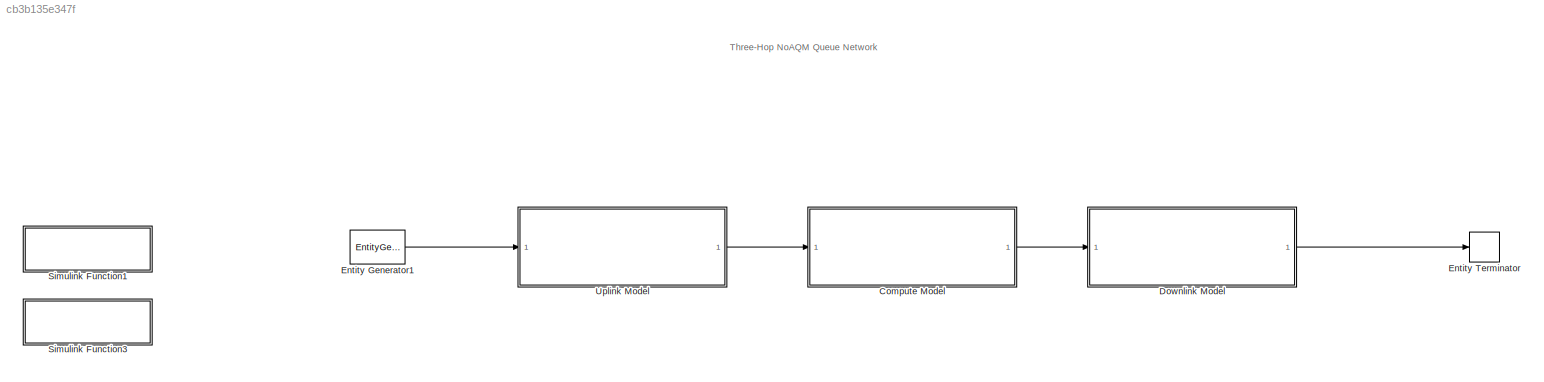
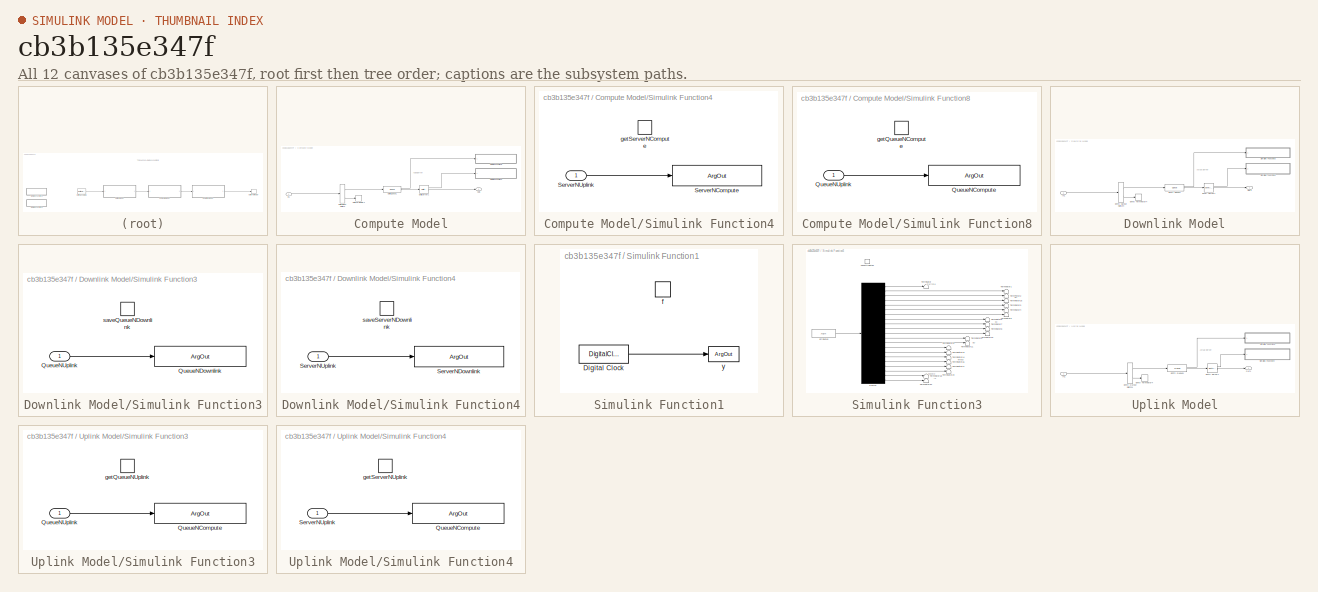
[diagram: thumbnail index - all 12 canvases of the model, root first then tree order]
MODEL slx_cb3b135e347f
KIND model
CONFIG AbsTol = auto
CONFIG EnableMultiTasking = on
CONFIG FixedStep = auto
CONFIG MaxStep = auto
CONFIG MinStep = auto
CONFIG RelTol = 1e-3
CONFIG SampleTimeConstraint = Unconstrained
CONFIG SolverName = VariableStepAuto
CONFIG StartTime = 0.0
CONFIG StopTime = 100
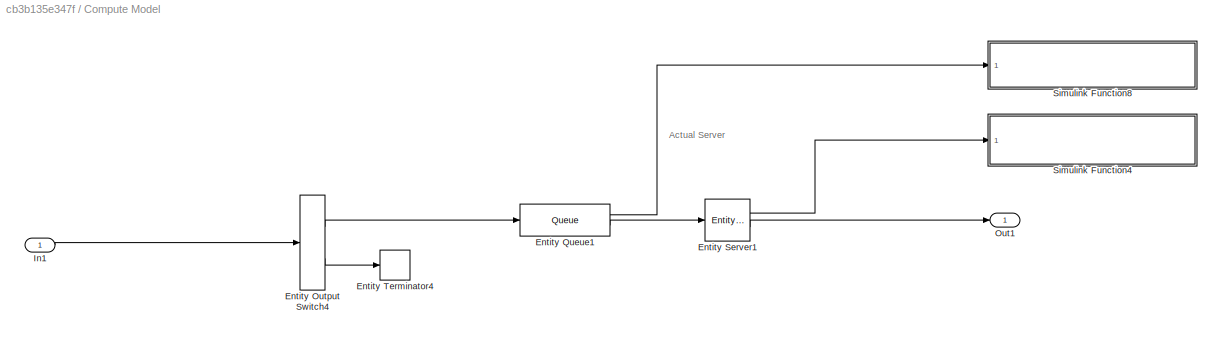
BLOCK [SubSystem] Compute Model
  Ports = [1, 1]
  RequestExecContextInheritance = off
BLOCK [EntityOutputSwitch] Compute Model/Entity Output Switch4
  InputPortMap = u1
  InputPortMessageModes = m
  OutputPortMap = o0,o1
  OutputPortMessageModes = m,m
  Ports = [1, 2]
  SwitchAttributeName = drop_at_source
BLOCK [Queue] Compute Model/Entity Queue1
  Capacity = sim_vars(10)
  InputPortMap = u0
  InputPortMessageModes = m
  NumberEntitiesInBlock = on
  OutputPortMap = o1,o5
  OutputPortMessageModes = n,m
  Ports = [1, 2]
BLOCK [EntityServer] Compute Model/Entity Server1
  Capacity = 1
  EntryAction = % record packet's queue timestamp\nentity.queuetime_compute = getCurrentTime();
  InputPortMap = u2
  InputPortMessageModes = m
  NumberEntitiesInBlock = on
  OutputPortMap = o1,o9
  OutputPortMessageModes = n,m
  Ports = [1, 2]
  ServiceCompleteAction = % record service timestamp\nentity.servicetime_compute = getCurrentTime();\n\n% record network state in front\nentity.queuen_downlink_bd = getQueueNDownlink();\nentity.servern_downlink_bd = getServerNDownlink();
  ServiceTimeAction = dt = getServiceTimeCompute(sim_vars(5),sim_vars(6),sim_vars(12));
  ServiceTimeSource = MATLAB action
BLOCK [EntityTerminator] Compute Model/Entity Terminator4
  EntryAction = saveAttributes([entity.starttime;               ...\n                entity.queuen_uplink_bu;        ...\n                entity.servern_uplink_bu;       ...\n                entity.queuen_compute_bu;       ...\n                entity.servern_compute_bu;      ...\n                entity.queuen_downlink_bu;      ...\n                entity.servern_downlink_bu;     ...\n                entity.queuen_comput...<+671ch>  <repeated x3 — deduplicated; at blocks: Entity Terminator4>
  InputPortMap = u0
  InputPortMessageModes = m
  Ports = [1]
BLOCK [Inport] Compute Model/In1
BLOCK [Outport] Compute Model/Out1
BLOCK [SubSystem] Compute Model/Simulink Function4
  Ports = [1, 0, 0, 1]
  RequestExecContextInheritance = off
  TreatAsAtomicUnit = on
BLOCK [ArgOut] Compute Model/Simulink Function4/ServerNCompute
  ArgumentName = ServerNCompute
  DisableCoverage = on
BLOCK [Inport] Compute Model/Simulink Function4/ServerNUplink
BLOCK [TriggerPort] Compute Model/Simulink Function4/getServerNCompute
  FunctionName = getServerNCompute
  IsSimulinkFunction = on
  Ports = []
  StatesWhenEnabling = held
  TriggerType = function-call
  VariantControl = (inherit)
BLOCK [SubSystem] Compute Model/Simulink Function8
  Ports = [1, 0, 0, 1]
  RequestExecContextInheritance = off
  TreatAsAtomicUnit = on
BLOCK [ArgOut] Compute Model/Simulink Function8/QueueNCompute
  ArgumentName = QueueNCompute
  DisableCoverage = on
BLOCK [Inport] Compute Model/Simulink Function8/QueueNUplink
BLOCK [TriggerPort] Compute Model/Simulink Function8/getQueueNCompute
  FunctionName = getQueueNCompute
  IsSimulinkFunction = on
  Ports = []
  StatesWhenEnabling = held
  TriggerType = function-call
  VariantControl = (inherit)
BLOCK [SubSystem] Downlink Model
  Ports = [1, 1]
  RequestExecContextInheritance = off
BLOCK [EntityOutputSwitch] Downlink Model/Entity Output Switch4
  InputPortMap = u1
  InputPortMessageModes = m
  OutputPortMap = o0,o1
  OutputPortMessageModes = m,m
  Ports = [1, 2]
  SwitchAttributeName = drop_at_source
BLOCK [Queue] Downlink Model/Entity Queue1
  Capacity = sim_vars(11)
  InputPortMap = u0
  InputPortMessageModes = m
  NumberEntitiesInBlock = on
  OutputPortMap = o1,o5
  OutputPortMessageModes = n,m
  Ports = [1, 2]
BLOCK [EntityServer] Downlink Model/Entity Server1
  Capacity = 1
  EntryAction = % record packet's queue timestamp\nentity.queuetime_downlink = getCurrentTime();
  InputPortMap = u2
  InputPortMessageModes = m
  NumberEntitiesInBlock = on
  OutputPortMap = o1,o9
  OutputPortMessageModes = n,m
  Ports = [1, 2]
  ServiceCompleteAction = % record service timestamp\nentity.servicetime_downlink = getCurrentTime();
  ServiceTimeAction = dt = getServiceTimeDownlink(sim_vars(7),sim_vars(8),sim_vars(12));
  ServiceTimeSource = MATLAB action
BLOCK [EntityTerminator] Downlink Model/Entity Terminator4
  InputPortMap = u0
  InputPortMessageModes = m
  Ports = [1]
BLOCK [Inport] Downlink Model/In1
BLOCK [Outport] Downlink Model/Out1
BLOCK [SubSystem] Downlink Model/Simulink Function3
  Ports = [1, 0, 0, 1]
  RequestExecContextInheritance = off
  TreatAsAtomicUnit = on
BLOCK [ArgOut] Downlink Model/Simulink Function3/QueueNDownlink
  ArgumentName = QueueNDownlink
  DisableCoverage = on
BLOCK [Inport] Downlink Model/Simulink Function3/QueueNUplink
BLOCK [TriggerPort] Downlink Model/Simulink Function3/saveQueueNDownlink
  FunctionName = getQueueNDownlink
  IsSimulinkFunction = on
  Ports = []
  StatesWhenEnabling = held
  TriggerType = function-call
  VariantControl = (inherit)
BLOCK [SubSystem] Downlink Model/Simulink Function4
  Ports = [1, 0, 0, 1]
  RequestExecContextInheritance = off
  TreatAsAtomicUnit = on
BLOCK [ArgOut] Downlink Model/Simulink Function4/ServerNDownlink
  ArgumentName = ServerNDownlink
  DisableCoverage = on
BLOCK [Inport] Downlink Model/Simulink Function4/ServerNUplink
BLOCK [TriggerPort] Downlink Model/Simulink Function4/saveServerNDownlink
  FunctionName = getServerNDownlink
  IsSimulinkFunction = on
  Ports = []
  StatesWhenEnabling = held
  TriggerType = function-call
  VariantControl = (inherit)
BLOCK [EntityGenerator] Entity Generator1
  AttributeInitialValue = inf|-1|-1|-1|-1|-1|-1|-1|-1|-1|-1|-1|-1|inf|inf|inf|inf|inf|inf|inf
  AttributeName = starttime|queuen_uplink_bu|servern_uplink_bu|queuen_compute_bu|servern_compute_bu|queuen_downlink_bu|servern_downlink_bu|queuen_compute_bc|servern_compute_bc|queuen_downlink_bc|servern_downlink_bc|queuen_downlink_bd|servern_downlink_bd|queuetime_uplink|servicetime_uplink|queuetime_compute|servicetime_compute|queuetime_downlink|servicetime_downlink|endtime
  EntityType = Structured
  EntityTypeName = Entity
  GenerateAction = entity.starttime = getCurrentTime();\n\nentity.queuen_uplink_bu = getQueueNUplink();\nentity.servern_uplink_bu = getServerNUplink();\n\nentity.queuen_compute_bu = getQueueNCompute();\nentity.servern_compute_bu = getServerNCompute();\n\nentity.queuen_downlink_bu = getQueueNDownlink();\nentity.servern_downlink_bu = getServerNDownlink();\n\n%[nd,ne,np] = saveCrossNUplink();\n%entity.crossn_uplink = nd-ne-np;
  IntergenerationTimeAction = dt = getArrivalTime(sim_vars(1),sim_vars(2),sim_vars(12));
  OutputPortMap = o3
  OutputPortMessageModes = m
  Ports = [0, 1]
  TimeSource = MATLAB action
BLOCK [EntityTerminator] Entity Terminator
  EntryAction = entity.endtime = getCurrentTime();\n\nsaveAttributes([entity.starttime;               ...\n                entity.queuen_uplink_bu;        ...\n                entity.servern_uplink_bu;       ...\n                entity.queuen_compute_bu;       ...\n                entity.servern_compute_bu;      ...\n                entity.queuen_downlink_bu;      ...\n                entity.servern_downlink_bu;     ...\n...<+707ch>
  InputPortMap = u0
  InputPortMessageModes = m
  Ports = [1]
BLOCK [SubSystem] Simulink Function1
  Ports = [0, 0, 0, 1]
  RequestExecContextInheritance = off
  TreatAsAtomicUnit = on
BLOCK [DigitalClock] Simulink Function1/Digital Clock
  SampleTime = -1
BLOCK [TriggerPort] Simulink Function1/f
  FunctionName = getCurrentTime
  IsSimulinkFunction = on
  Ports = []
  StatesWhenEnabling = held
  TriggerType = function-call
  VariantControl = (inherit)
BLOCK [ArgOut] Simulink Function1/y
  ArgumentName = y
  DisableCoverage = on
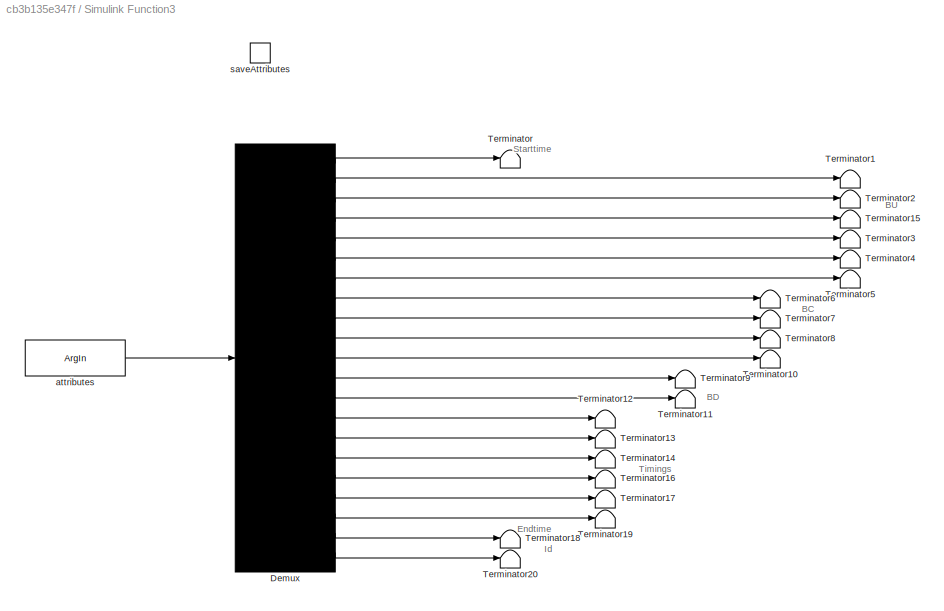
BLOCK [SubSystem] Simulink Function3
  Ports = [0, 0, 0, 1]
  RequestExecContextInheritance = off
  TreatAsAtomicUnit = on
BLOCK [Demux] Simulink Function3/Demux
  DisplayOption = none
  Outputs = 21
  Ports = [1, 21]
BLOCK [Terminator] Simulink Function3/Terminator
BLOCK [Terminator] Simulink Function3/Terminator1
BLOCK [Terminator] Simulink Function3/Terminator10
BLOCK [Terminator] Simulink Function3/Terminator11
BLOCK [Terminator] Simulink Function3/Terminator12
BLOCK [Terminator] Simulink Function3/Terminator13
BLOCK [Terminator] Simulink Function3/Terminator14
BLOCK [Terminator] Simulink Function3/Terminator15
BLOCK [Terminator] Simulink Function3/Terminator16
BLOCK [Terminator] Simulink Function3/Terminator17
BLOCK [Terminator] Simulink Function3/Terminator18
BLOCK [Terminator] Simulink Function3/Terminator19
BLOCK [Terminator] Simulink Function3/Terminator2
BLOCK [Terminator] Simulink Function3/Terminator20
BLOCK [Terminator] Simulink Function3/Terminator3
BLOCK [Terminator] Simulink Function3/Terminator4
BLOCK [Terminator] Simulink Function3/Terminator5
BLOCK [Terminator] Simulink Function3/Terminator6
BLOCK [Terminator] Simulink Function3/Terminator7
BLOCK [Terminator] Simulink Function3/Terminator8
BLOCK [Terminator] Simulink Function3/Terminator9
BLOCK [ArgIn] Simulink Function3/attributes
  ArgumentName = attributes
  DisableCoverage = on
  PortDimensions = 21
BLOCK [TriggerPort] Simulink Function3/saveAttributes
  FunctionName = saveAttributes
  IsSimulinkFunction = on
  Ports = []
  StatesWhenEnabling = held
  TriggerType = function-call
  VariantControl = (inherit)
BLOCK [SubSystem] Uplink Model
  Ports = [1, 1]
  RequestExecContextInheritance = off
BLOCK [EntityOutputSwitch] Uplink Model/Entity Output Switch4
  InputPortMap = u1
  InputPortMessageModes = m
  OutputPortMap = o0,o1
  OutputPortMessageModes = m,m
  Ports = [1, 2]
  SwitchAttributeName = drop_at_source
BLOCK [Queue] Uplink Model/Entity Queue1
  Capacity = sim_vars(9)
  InputPortMap = u0
  InputPortMessageModes = m
  NumberEntitiesInBlock = on
  OutputPortMap = o1,o5
  OutputPortMessageModes = n,m
  Ports = [1, 2]
BLOCK [EntityServer] Uplink Model/Entity Server1
  Capacity = 1
  EntryAction = % update packet's queue timestamp\nentity.queuetime_uplink = getCurrentTime();
  InputPortMap = u2
  InputPortMessageModes = m
  NumberEntitiesInBlock = on
  OutputPortMap = o1,o9
  OutputPortMessageModes = n,m
  Ports = [1, 2]
  ServiceCompleteAction = % update service time\nentity.servicetime_uplink = getCurrentTime();\n\n% save network state in front\nentity.queuen_compute_bc = getQueueNCompute();\nentity.servern_compute_bc = getServerNCompute();\n\nentity.queuen_downlink_bc = getQueueNDownlink();\nentity.servern_downlink_bc = getServerNDownlink();
  ServiceTimeAction = dt = getServiceTimeUplink(sim_vars(3),sim_vars(4),sim_vars(12));
  ServiceTimeSource = MATLAB action
BLOCK [EntityTerminator] Uplink Model/Entity Terminator4
  InputPortMap = u0
  InputPortMessageModes = m
  Ports = [1]
BLOCK [Inport] Uplink Model/In1
BLOCK [Outport] Uplink Model/Out1
BLOCK [SubSystem] Uplink Model/Simulink Function3
  Ports = [1, 0, 0, 1]
  RequestExecContextInheritance = off
  TreatAsAtomicUnit = on
BLOCK [ArgOut] Uplink Model/Simulink Function3/QueueNCompute
  ArgumentName = QueueNUplink
  DisableCoverage = on
BLOCK [Inport] Uplink Model/Simulink Function3/QueueNUplink
BLOCK [TriggerPort] Uplink Model/Simulink Function3/getQueueNUplink
  FunctionName = getQueueNUplink
  IsSimulinkFunction = on
  Ports = []
  StatesWhenEnabling = held
  TriggerType = function-call
  VariantControl = (inherit)
BLOCK [SubSystem] Uplink Model/Simulink Function4
  Ports = [1, 0, 0, 1]
  RequestExecContextInheritance = off
  TreatAsAtomicUnit = on
BLOCK [ArgOut] Uplink Model/Simulink Function4/QueueNCompute
  ArgumentName = ServerNUplink
  DisableCoverage = on
BLOCK [Inport] Uplink Model/Simulink Function4/ServerNUplink
BLOCK [TriggerPort] Uplink Model/Simulink Function4/getServerNUplink
  FunctionName = getServerNUplink
  IsSimulinkFunction = on
  Ports = []
  StatesWhenEnabling = held
  TriggerType = function-call
  VariantControl = (inherit)
ANNOTATION (root): Three-Hop NoAQM Queue Network
ANNOTATION Compute Model: Actual Server
ANNOTATION Downlink Model: Actual Server
ANNOTATION Simulink Function3: BC
ANNOTATION Simulink Function3: BD
ANNOTATION Simulink Function3: BU
ANNOTATION Simulink Function3: Endtime
ANNOTATION Simulink Function3: Id
ANNOTATION Simulink Function3: Starttime
ANNOTATION Simulink Function3: Timings
ANNOTATION Uplink Model: Actual Server
LINE Compute Model/Entity Output Switch4:1 -> Compute Model/Entity Queue1:1
LINE Compute Model/Entity Output Switch4:2 -> Compute Model/Entity Terminator4:1
LINE Compute Model/Entity Queue1:1 -> Compute Model/Simulink Function8:1
LINE Compute Model/Entity Queue1:2 -> Compute Model/Entity Server1:1
LINE Compute Model/Entity Server1:1 -> Compute Model/Simulink Function4:1
LINE Compute Model/Entity Server1:2 -> Compute Model/Out1:1
LINE Compute Model/In1:1 -> Compute Model/Entity Output Switch4:1
LINE Compute Model/Simulink Function4/ServerNUplink:1 -> Compute Model/Simulink Function4/ServerNCompute:1
LINE Compute Model/Simulink Function8/QueueNUplink:1 -> Compute Model/Simulink Function8/QueueNCompute:1
LINE Compute Model:1 -> Downlink Model:1
LINE Downlink Model/Entity Output Switch4:1 -> Downlink Model/Entity Queue1:1
LINE Downlink Model/Entity Output Switch4:2 -> Downlink Model/Entity Terminator4:1
LINE Downlink Model/Entity Queue1:1 -> Downlink Model/Simulink Function3:1
LINE Downlink Model/Entity Queue1:2 -> Downlink Model/Entity Server1:1
LINE Downlink Model/Entity Server1:1 -> Downlink Model/Simulink Function4:1
LINE Downlink Model/Entity Server1:2 -> Downlink Model/Out1:1
LINE Downlink Model/In1:1 -> Downlink Model/Entity Output Switch4:1
LINE Downlink Model/Simulink Function3/QueueNUplink:1 -> Downlink Model/Simulink Function3/QueueNDownlink:1
LINE Downlink Model/Simulink Function4/ServerNUplink:1 -> Downlink Model/Simulink Function4/ServerNDownlink:1
LINE Downlink Model:1 -> Entity Terminator:1
LINE Entity Generator1:1 -> Uplink Model:1
LINE Simulink Function1/Digital Clock:1 -> Simulink Function1/y:1
LINE Simulink Function3/Demux:1 -> Simulink Function3/Terminator:1
LINE Simulink Function3/Demux:10 -> Simulink Function3/Terminator8:1
LINE Simulink Function3/Demux:11 -> Simulink Function3/Terminator10:1
LINE Simulink Function3/Demux:12 -> Simulink Function3/Terminator9:1
LINE Simulink Function3/Demux:13 -> Simulink Function3/Terminator11:1
LINE Simulink Function3/Demux:14 -> Simulink Function3/Terminator12:1
LINE Simulink Function3/Demux:15 -> Simulink Function3/Terminator13:1
LINE Simulink Function3/Demux:16 -> Simulink Function3/Terminator14:1
LINE Simulink Function3/Demux:17 -> Simulink Function3/Terminator16:1
LINE Simulink Function3/Demux:18 -> Simulink Function3/Terminator17:1
LINE Simulink Function3/Demux:19 -> Simulink Function3/Terminator19:1
LINE Simulink Function3/Demux:2 -> Simulink Function3/Terminator1:1
LINE Simulink Function3/Demux:20 -> Simulink Function3/Terminator18:1
LINE Simulink Function3/Demux:21 -> Simulink Function3/Terminator20:1
LINE Simulink Function3/Demux:3 -> Simulink Function3/Terminator2:1
LINE Simulink Function3/Demux:4 -> Simulink Function3/Terminator15:1
LINE Simulink Function3/Demux:5 -> Simulink Function3/Terminator3:1
LINE Simulink Function3/Demux:6 -> Simulink Function3/Terminator4:1
LINE Simulink Function3/Demux:7 -> Simulink Function3/Terminator5:1
LINE Simulink Function3/Demux:8 -> Simulink Function3/Terminator6:1
LINE Simulink Function3/Demux:9 -> Simulink Function3/Terminator7:1
LINE Simulink Function3/attributes:1 -> Simulink Function3/Demux:1
LINE Uplink Model/Entity Output Switch4:1 -> Uplink Model/Entity Queue1:1
LINE Uplink Model/Entity Output Switch4:2 -> Uplink Model/Entity Terminator4:1
LINE Uplink Model/Entity Queue1:1 -> Uplink Model/Simulink Function3:1
LINE Uplink Model/Entity Queue1:2 -> Uplink Model/Entity Server1:1
LINE Uplink Model/Entity Server1:1 -> Uplink Model/Simulink Function4:1
LINE Uplink Model/Entity Server1:2 -> Uplink Model/Out1:1
LINE Uplink Model/In1:1 -> Uplink Model/Entity Output Switch4:1
LINE Uplink Model/Simulink Function3/QueueNUplink:1 -> Uplink Model/Simulink Function3/QueueNCompute:1
LINE Uplink Model/Simulink Function4/ServerNUplink:1 -> Uplink Model/Simulink Function4/QueueNCompute:1
LINE Uplink Model:1 -> Compute Model:1
